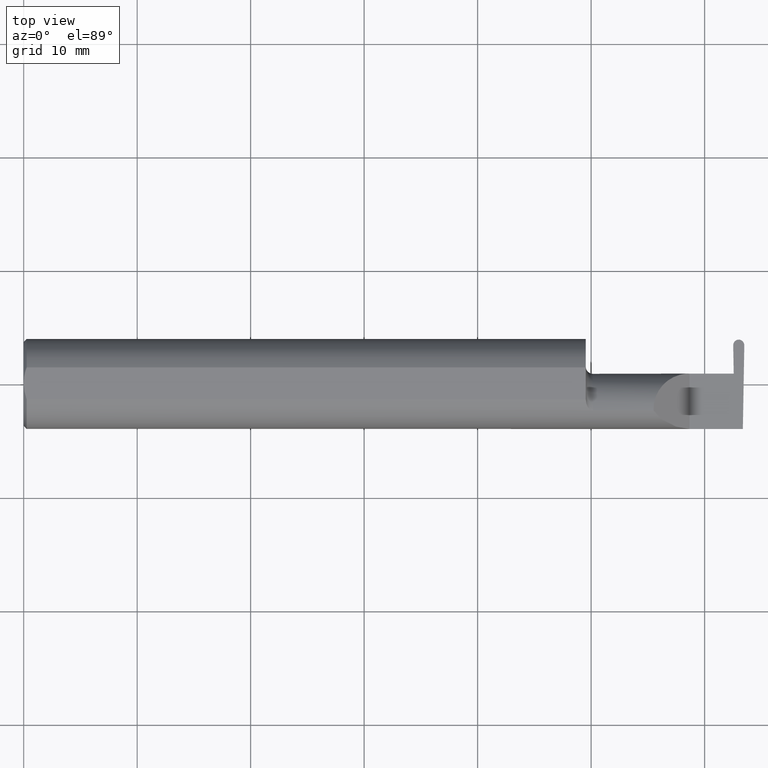
[diagram: clean part render]
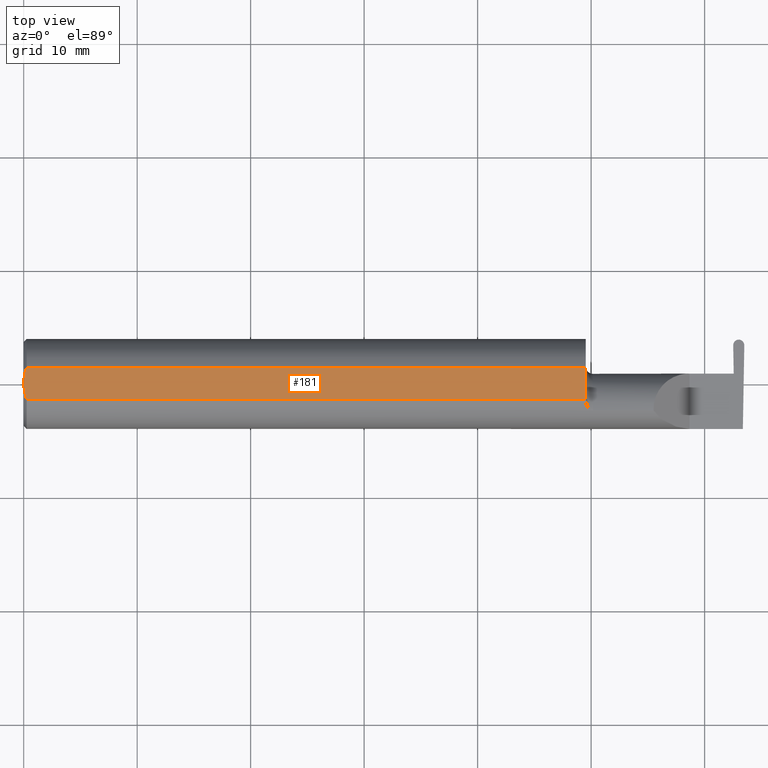
[diagram: same view with one face highlighted and labeled with its STEP entity id]
A machine part, top view. The second image highlights one B-rep face of the part: STEP entity #181.
In plain terms, the highlighted planar face has unit normal (0, 0, 1).
Its self-contained STEP definition (entity closure, byte-faithful):
#19 = CARTESIAN_POINT ( 'NONE',  ( 2.814752029381861309, 0.1560999999999999888, 0.1460999999999998689 ) ) ;
#26 = B_SPLINE_CURVE_WITH_KNOTS ( 'NONE', 3,
 ( #552, #340, #435, #168, #234, #439 ),
 .UNSPECIFIED., .F., .F.,
 ( 4, 2, 4 ),
 ( 0.001497827971916939694, 0.002206109860466201264, 0.002914391749015463051 ),
 .UNSPECIFIED. ) ;
#29 = FACE_OUTER_BOUND ( 'NONE', #390, .T. ) ;
#50 = DIRECTION ( 'NONE',  ( -1.000000000000000000, -0.000000000000000000, -0.000000000000000000 ) ) ;
#77 = CARTESIAN_POINT ( 'NONE',  ( -6.265209250606362652E-17, 0.009396510398413125686, 0.1460999999999998689 ) ) ;
#80 = PLANE ( 'NONE',  #470 ) ;
#81 = DIRECTION ( 'NONE',  ( 0.000000000000000000, 0.000000000000000000, 1.000000000000000000 ) ) ;
#86 = VECTOR ( 'NONE', #50, 39.37007874015748143 ) ;
#90 = CARTESIAN_POINT ( 'NONE',  ( 0.000000000000000000, 0.05497272050753933964, 0.1460999999999998689 ) ) ;
#109 = VERTEX_POINT ( 'NONE', #337 ) ;
#137 = VECTOR ( 'NONE', #510, 39.37007874015748143 ) ;
#144 = ORIENTED_EDGE ( 'NONE', *, *, #270, .T. ) ;
#168 = CARTESIAN_POINT ( 'NONE',  ( 0.0009113193687670144904, -0.01867274705588957071, 0.1460999999999998411 ) ) ;
#181 = ADVANCED_FACE ( 'NONE', ( #29 ), #80, .T. ) ;
#187 = VERTEX_POINT ( 'NONE', #288 ) ;
#188 = CARTESIAN_POINT ( 'NONE',  ( 0.006876379561362894709, 0.04610291843171884091, 0.1460999999999998689 ) ) ;
#213 = ORIENTED_EDGE ( 'NONE', *, *, #555, .F. ) ;
#234 = CARTESIAN_POINT ( 'NONE',  ( -6.292721147515215909E-17, -0.009387766318748835132, 0.1460999999999998689 ) ) ;
#253 = VERTEX_POINT ( 'NONE', #568 ) ;
#270 = EDGE_CURVE ( 'NONE', #356, #109, #351, .T. ) ;
#282 = DIRECTION ( 'NONE',  ( 1.000000000000000000, 0.000000000000000000, 0.000000000000000000 ) ) ;
#288 = CARTESIAN_POINT ( 'NONE',  ( 0.01000000000000013205, 0.05497272050753933964, 0.1460999999999998689 ) ) ;
#314 = ORIENTED_EDGE ( 'NONE', *, *, #691, .F. ) ;
#321 = EDGE_CURVE ( 'NONE', #109, #187, #528, .T. ) ;
#333 = CARTESIAN_POINT ( 'NONE',  ( 0.000000000000000000, -0.05497272050753933964, 0.1460999999999998689 ) ) ;
#337 = CARTESIAN_POINT ( 'NONE',  ( 1.949999999999999956, 0.05497272050753933964, 0.1460999999999998689 ) ) ;
#340 = CARTESIAN_POINT ( 'NONE',  ( 0.006903212852521220001, -0.04617911398309930415, 0.1460999999999998689 ) ) ;
#351 = LINE ( 'NONE', #461, #137 ) ;
#356 = VERTEX_POINT ( 'NONE', #682 ) ;
#390 = EDGE_LOOP ( 'NONE', ( #581, #144, #518, #314, #213 ) ) ;
#403 = DIRECTION ( 'NONE',  ( 1.000000000000000000, 0.000000000000000000, -0.000000000000000000 ) ) ;
#407 = CARTESIAN_POINT ( 'NONE',  ( 0.004370115738487063105, 0.03710696786819756010, 0.1460999999999998411 ) ) ;
#435 = CARTESIAN_POINT ( 'NONE',  ( 0.004356241145161886263, -0.03705973501792376307, 0.1460999999999998689 ) ) ;
#439 = CARTESIAN_POINT ( 'NONE',  ( 0.000000000000000000, 0.000000000000000000, 0.1460999999999998689 ) ) ;
#448 = B_SPLINE_CURVE_WITH_KNOTS ( 'NONE', 3,
 ( #507, #77, #613, #407, #188, #610 ),
 .UNSPECIFIED., .F., .F.,
 ( 4, 2, 4 ),
 ( 0.002914391749015463051, 0.003623333355014857204, 0.004332274961014251358 ),
 .UNSPECIFIED. ) ;
#461 = CARTESIAN_POINT ( 'NONE',  ( 1.949999999999999956, 0.1560999999999999333, 0.1460999999999998689 ) ) ;
#470 = AXIS2_PLACEMENT_3D ( 'NONE', #19, #81, #403 ) ;
#474 = EDGE_CURVE ( 'NONE', #253, #356, #623, .T. ) ;
#485 = VERTEX_POINT ( 'NONE', #593 ) ;
#507 = CARTESIAN_POINT ( 'NONE',  ( 0.000000000000000000, 0.000000000000000000, 0.1460999999999998689 ) ) ;
#510 = DIRECTION ( 'NONE',  ( -3.338285537973413126E-17, 1.000000000000000000, 0.000000000000000000 ) ) ;
#518 = ORIENTED_EDGE ( 'NONE', *, *, #321, .T. ) ;
#528 = LINE ( 'NONE', #90, #86 ) ;
#549 = VECTOR ( 'NONE', #282, 39.37007874015748143 ) ;
#552 = CARTESIAN_POINT ( 'NONE',  ( 0.01000000000000013205, -0.05497272050753933964, 0.1460999999999998689 ) ) ;
#555 = EDGE_CURVE ( 'NONE', #253, #485, #26, .T. ) ;
#568 = CARTESIAN_POINT ( 'NONE',  ( 0.01000000000000013205, -0.05497272050753933964, 0.1460999999999998689 ) ) ;
#581 = ORIENTED_EDGE ( 'NONE', *, *, #474, .T. ) ;
#593 = CARTESIAN_POINT ( 'NONE',  ( 0.000000000000000000, 0.000000000000000000, 0.1460999999999998689 ) ) ;
#610 = CARTESIAN_POINT ( 'NONE',  ( 0.01000000000000013205, 0.05497272050753933964, 0.1460999999999998689 ) ) ;
#613 = CARTESIAN_POINT ( 'NONE',  ( 0.0009290501461040111091, 0.01879395969143608097, 0.1460999999999998689 ) ) ;
#623 = LINE ( 'NONE', #333, #549 ) ;
#682 = CARTESIAN_POINT ( 'NONE',  ( 1.949999999999999956, -0.05497272050753934658, 0.1460999999999998689 ) ) ;
#691 = EDGE_CURVE ( 'NONE', #485, #187, #448, .T. ) ;